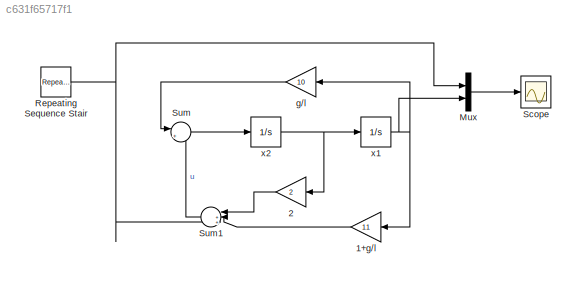
MODEL slx_c631f65717f1
KIND model
CONFIG AbsTol = auto
CONFIG EnableMultiTasking = off
CONFIG FixedStep = auto
CONFIG MaxStep = auto
CONFIG MinStep = auto
CONFIG RelTol = 1e-3
CONFIG SampleTimeConstraint = Unconstrained
CONFIG SolverName = VariableStepAuto
CONFIG StartTime = 0.0
CONFIG StopTime = 100.0
BLOCK [Gain] 1+g//l
  Gain = 11
BLOCK [Gain] 2
  Gain = 2
BLOCK [Mux] Mux
  DisplayOption = bar
  Inputs = 2
BLOCK [Reference] Repeating Sequence Stair  REF=simulink/Sources/Repeating
Sequence
Stair
  SourceBlock = simulink/Sources/Repeating\nSequence\nStair
  SourceType = Repeating Sequence Stair
BLOCK [Scope] Scope
  Floating = off
  NumInputPorts = 1
  ScopeSpecificationString = Simulink.scopes.TimeScopeBlockCfg('CurrentConfiguration', extmgr.ConfigurationSet(extmgr.Configuration('Core','General UI',true),extmgr.Configuration('Core','Source UI',true),extmgr.Configuration('Sources','WiredSimulink',true),extmgr.Configuration('Visuals','Time Domain',true,'SerializedDisplays',{struct('MinYLimReal','-85864518497814349040084800895651167117958603922956600997267622986433211382263...<+3330ch>
BLOCK [Sum] Sum
  Inputs = |+-
BLOCK [Sum] Sum1
  Inputs = |++-
BLOCK [Gain] g//l
  Gain = 10
BLOCK [Integrator] x1
BLOCK [Integrator] x2
LINE 1+g//l:1 -> Sum1:2
LINE 2:1 -> Sum1:1
LINE Mux:1 -> Scope:1
NET Repeating Sequence Stair:1 -> Mux:1, Sum1:3
LINE Sum1:1 -> Sum:2
LINE Sum:1 -> x2:1
LINE g//l:1 -> Sum:1
NET x1:1 -> 1+g//l:1, Mux:2, g//l:1
NET x2:1 -> 2:1, x1:1
note: NET lines group one-source signal fan-out (src -> all destinations, sorted); 1:1 wires keep LINE
